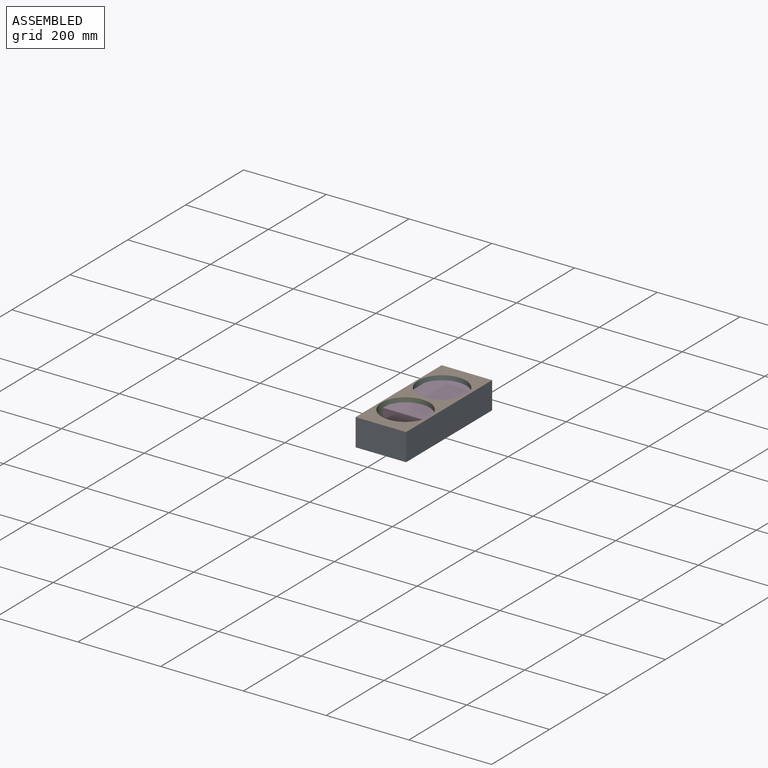
[diagram: assembled view]
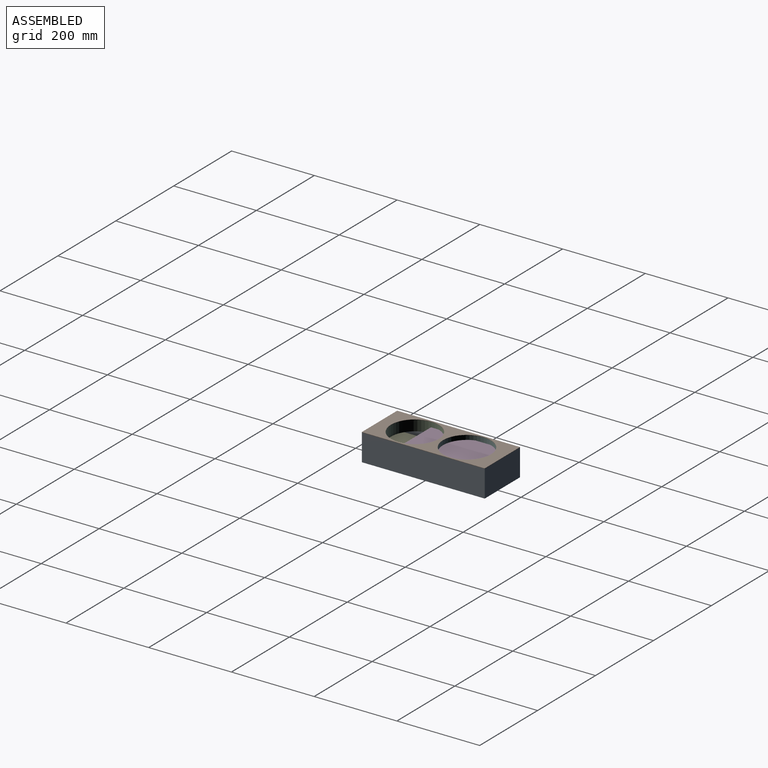
[diagram: assembled view, second angle]
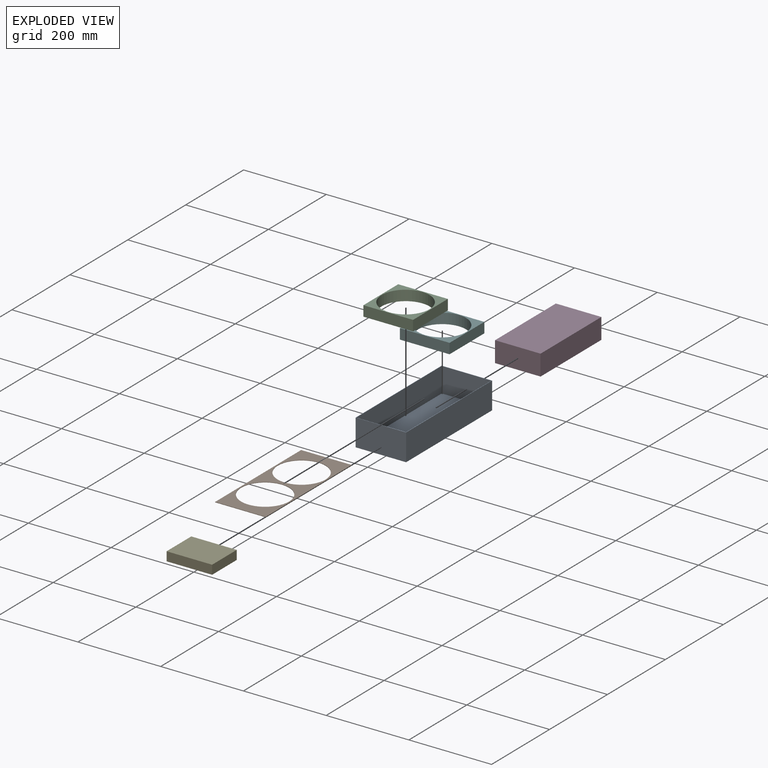
[diagram: exploded view]
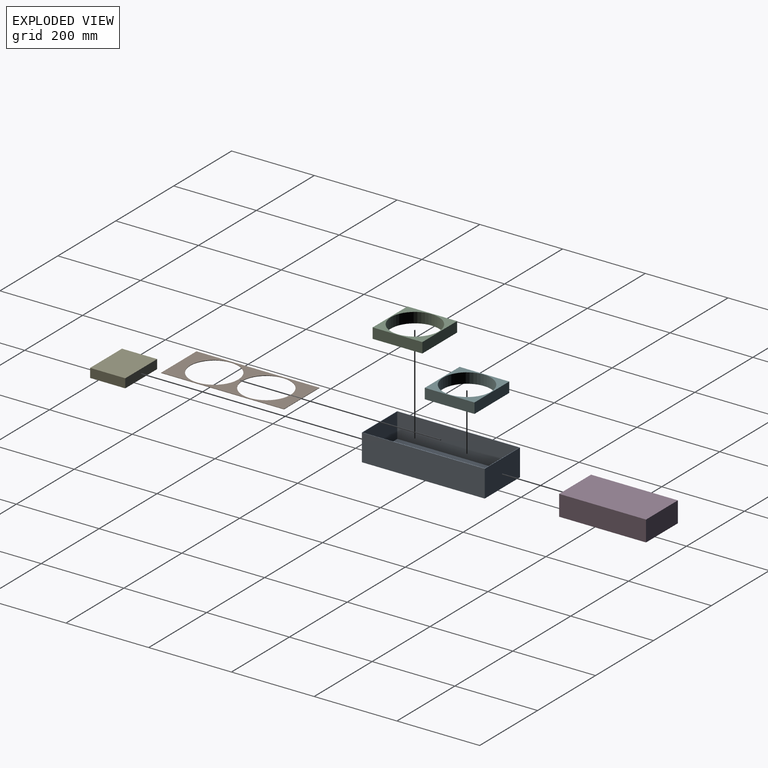
[diagram: exploded view, second angle]
ASSEMBLY  parts=6 mates=5
PART A: 11 faces, bbox 122x297x65 mm
  f0: plane 122x65mm, normal (0,1,0), area 7930mm2, adj f1,f3,f4,f9
  f1: plane 297x65mm, normal (-1,0,0), area 19305mm2, adj f0,f2,f4,f9
  f2: plane 122x65mm, normal (0,-1,0), area 7930mm2, adj f1,f3,f4,f9
  f3: plane 297x65mm, normal (1,0,0), area 19305mm2, adj f0,f2,f4,f9
  f4: plane 297x122mm, normal (0,0,-1), area 36234mm2, adj f0,f1,f2,f3
  f5: plane 295x60mm, normal (1,0,0), area 17700mm2, adj f6,f8,f9,f10
  f6: plane 120x60mm, normal (0,-1,0), area 7200mm2, adj f5,f7,f9,f10
  f7: plane 295x60mm, normal (-1,0,0), area 17700mm2, adj f6,f8,f9,f10
  f8: plane 120x60mm, normal (0,1,0), area 7200mm2, adj f5,f7,f9,f10
  f9: plane 297x122mm, normal (0,0,1), area 834mm2, adj f0,f1,f2,f3,f5,f6,f7,f8
  f10: plane 295x120mm, normal (0,0,1), area 35400mm2, adj f5,f6,f7,f8
PART B: 8 faces, bbox 122x297x1 mm
  f0: plane 122x1mm, normal (0,1,0), area 122mm2, adj f1,f5,f6,f7
  f1: plane 297x1mm, normal (-1,0,0), area 297mm2, adj f0,f2,f6,f7
  f2: plane 122x1mm, normal (0,-1,0), area 122mm2, adj f1,f5,f6,f7
  f3: cylinder r=58mm len=116mm, axis (0,0,-1), area 364.4mm2, adj f6,f7
  f4: cylinder r=58mm len=116mm, axis (0,0,-1), area 364.4mm2, adj f6,f7
  f5: plane 297x1mm, normal (1,0,0), area 297mm2, adj f0,f2,f6,f7
  f6: plane 297x122mm, normal (0,0,1), area 15097.4mm2, adj f0,f1,f2,f3,f4,f5
  f7: plane 297x122mm, normal (0,0,-1), area 15097.4mm2, adj f0,f1,f2,f3,f4,f5
PART C: 7 faces, bbox 120x120x25 mm
  f0: plane 120x25mm, normal (0,1,0), area 3000mm2, adj f1,f4,f5,f6
  f1: plane 120x25mm, normal (-1,0,0), area 3000mm2, adj f0,f2,f5,f6
  f2: plane 120x25mm, normal (0,-1,0), area 3000mm2, adj f1,f4,f5,f6
  f3: cylinder r=58mm len=116mm, axis (0,0,-1), area 9110.6mm2, adj f5,f6
  f4: plane 120x25mm, normal (1,0,0), area 3000mm2, adj f0,f2,f5,f6
  f5: plane 120x120mm, normal (0,0,1), area 3831.7mm2, adj f0,f1,f2,f3,f4
  f6: plane 120x120mm, normal (0,0,-1), area 3831.7mm2, adj f0,f1,f2,f3,f4
PART D: 6 faces, bbox 210x110x50 mm
  f0: plane 110x50mm, normal (1,0,0), area 5500mm2, adj f1,f3,f4,f5
  f1: plane 210x50mm, normal (0,1,0), area 10500mm2, adj f0,f2,f4,f5
  f2: plane 110x50mm, normal (-1,0,0), area 5500mm2, adj f1,f3,f4,f5
  f3: plane 210x50mm, normal (0,-1,0), area 10500mm2, adj f0,f2,f4,f5
  f4: plane 210x110mm, normal (0,0,1), area 23100mm2, adj f0,f1,f2,f3
  f5: plane 210x110mm, normal (0,0,-1), area 23100mm2, adj f0,f1,f2,f3
PART E: 6 faces, bbox 110x85x22 mm
  f0: plane 85x22mm, normal (1,0,0), area 1870mm2, adj f1,f3,f4,f5
  f1: plane 110x22mm, normal (0,1,0), area 2420mm2, adj f0,f2,f4,f5
  f2: plane 85x22mm, normal (-1,0,0), area 1870mm2, adj f1,f3,f4,f5
  f3: plane 110x22mm, normal (0,-1,0), area 2420mm2, adj f0,f2,f4,f5
  f4: plane 110x85mm, normal (0,0,1), area 9350mm2, adj f0,f1,f2,f3
  f5: plane 110x85mm, normal (0,0,-1), area 9350mm2, adj f0,f1,f2,f3
PART F: same geometry as C
PLACE A t=(-5.63,2.38,5.94)mm
PLACE B t=(-5.63,2.38,70.94)mm
PLACE C t=(-5.63,-60.62,45.94)mm
PLACE D rot(axis=(0,0,1),90deg) t=(-5.63,44.88,10.94)mm
PLACE E t=(-5.63,-102.62,10.94)mm
PLACE F t=(-5.63,65.38,45.94)mm
MATE fastened E.f3 <-> A.f8  axis (0,-1,0) through (-5.63,-145.12,10.94)mm
MATE revolute B.f2 <-> A.f2  axis (0,-1,0) through (-66.63,-146.12,70.94)mm
MATE fastened C.f3 <-> B.f4  axis (0,0,1) through (-5.63,-60.62,70.94)mm
MATE fastened F.f3 <-> B.f3  axis (0,0,1) through (-5.63,65.38,70.94)mm
MATE fastened D.f0 <-> A.f6  axis (0,1,0) through (-5.63,149.88,10.94)mm
